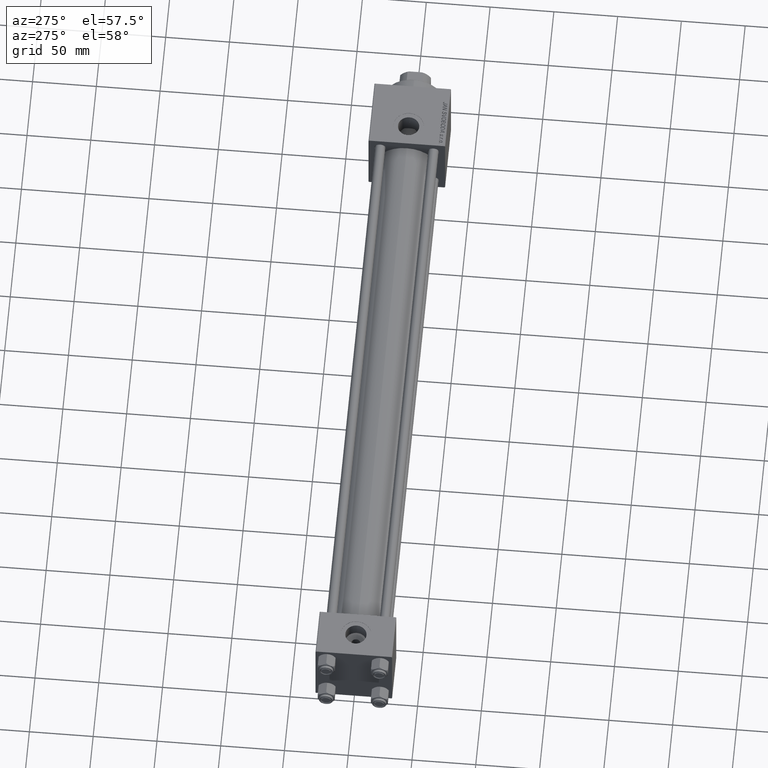
[diagram: clean part render]
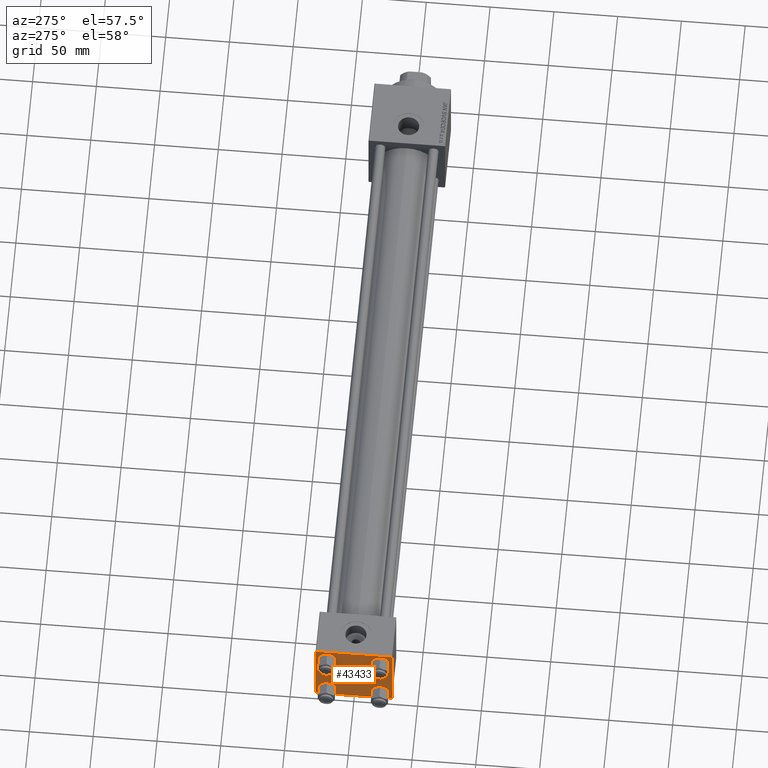
[diagram: same view with one face highlighted and labeled with its STEP entity id]
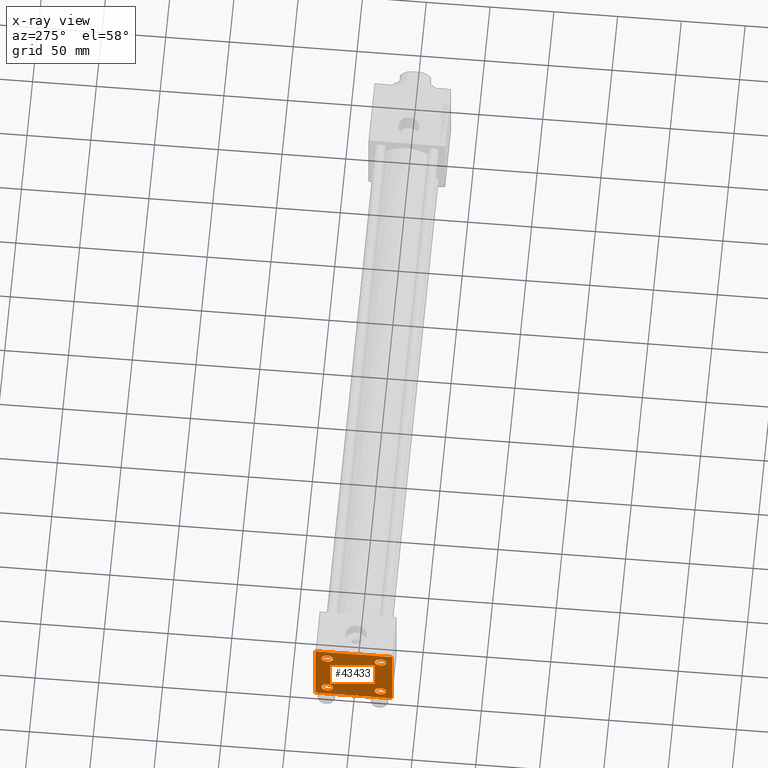
[diagram: x-ray of the same camera — body ghosted, the highlighted face saturated]
A machine part, auxiliary view. The second image highlights one B-rep face of the part: STEP entity #43433.
The next image is the same camera in x-ray: the body ghosted, the highlighted face saturated — about 0% of this face is hidden behind the body in this view.
In plain terms, the highlighted planar face has unit normal (-1, 0, 0).
Its self-contained STEP definition (entity closure, byte-faithful):
#928 = ORIENTED_EDGE ( 'NONE', *, *, #9947, .T. ) ;
#935 = VECTOR ( 'NONE', #14665, 1000.000000000000000 ) ;
#1095 = EDGE_LOOP ( 'NONE', ( #928, #43451 ) ) ;
#1309 = EDGE_CURVE ( 'NONE', #14883, #38862, #42346, .T. ) ;
#2477 = CIRCLE ( 'NONE', #11626, 4.500000000000017764 ) ;
#2730 = ORIENTED_EDGE ( 'NONE', *, *, #27385, .T. ) ;
#2939 = DIRECTION ( 'NONE',  ( 1.000000000000000000, -0.000000000000000000, 0.000000000000000000 ) ) ;
#3061 = FACE_OUTER_BOUND ( 'NONE', #20175, .T. ) ;
#3316 = FACE_BOUND ( 'NONE', #9553, .T. ) ;
#4390 = CARTESIAN_POINT ( 'NONE',  ( 0.000000000000000000, -29.50000000000000000, -30.00000000000000711 ) ) ;
#4514 = VERTEX_POINT ( 'NONE', #5230 ) ;
#5040 = DIRECTION ( 'NONE',  ( 0.000000000000000000, 0.000000000000000000, 1.000000000000000000 ) ) ;
#5230 = CARTESIAN_POINT ( 'NONE',  ( 0.000000000000000000, 20.84999999999999787, 16.34999999999998366 ) ) ;
#5675 = DIRECTION ( 'NONE',  ( 0.000000000000000000, -1.000000000000000000, -1.156482317317871725E-16 ) ) ;
#5752 = EDGE_LOOP ( 'NONE', ( #12456, #6644 ) ) ;
#5933 = LINE ( 'NONE', #41283, #40727 ) ;
#6331 = CIRCLE ( 'NONE', #22970, 4.500000000000017764 ) ;
#6529 = DIRECTION ( 'NONE',  ( 0.000000000000000000, 0.000000000000000000, 1.000000000000000000 ) ) ;
#6644 = ORIENTED_EDGE ( 'NONE', *, *, #19361, .T. ) ;
#6694 = EDGE_CURVE ( 'NONE', #49204, #27174, #9448, .T. ) ;
#6754 = CARTESIAN_POINT ( 'NONE',  ( 0.000000000000000000, 29.49999999999999289, 30.00000000000000000 ) ) ;
#6861 = ORIENTED_EDGE ( 'NONE', *, *, #14428, .T. ) ;
#7112 = VECTOR ( 'NONE', #17768, 1000.000000000000114 ) ;
#7208 = DIRECTION ( 'NONE',  ( -0.000000000000000000, 0.000000000000000000, 1.000000000000000000 ) ) ;
#7297 = CIRCLE ( 'NONE', #23077, 4.500000000000017764 ) ;
#7613 = VERTEX_POINT ( 'NONE', #27428 ) ;
#8178 = ORIENTED_EDGE ( 'NONE', *, *, #12014, .F. ) ;
#9448 = CIRCLE ( 'NONE', #36822, 4.500000000000017764 ) ;
#9553 = EDGE_LOOP ( 'NONE', ( #19967, #37689 ) ) ;
#9947 = EDGE_CURVE ( 'NONE', #17975, #26574, #21061, .T. ) ;
#10006 = EDGE_CURVE ( 'NONE', #48963, #45696, #44455, .T. ) ;
#11021 = CARTESIAN_POINT ( 'NONE',  ( 0.000000000000000000, 29.99999999999999289, 30.00000000000000000 ) ) ;
#11135 = DIRECTION ( 'NONE',  ( 0.000000000000000000, -1.000000000000000000, -1.156482317317871725E-16 ) ) ;
#11387 = FACE_BOUND ( 'NONE', #44160, .T. ) ;
#11530 = CARTESIAN_POINT ( 'NONE',  ( 0.000000000000000000, -20.84999999999999076, -20.85000000000000497 ) ) ;
#11626 = AXIS2_PLACEMENT_3D ( 'NONE', #36751, #40893, #13121 ) ;
#11755 = CARTESIAN_POINT ( 'NONE',  ( 0.000000000000000000, 20.84999999999999787, -20.85000000000000142 ) ) ;
#11906 = CARTESIAN_POINT ( 'NONE',  ( 0.000000000000000000, 29.99999999999999289, 29.50000000000000000 ) ) ;
#12014 = EDGE_CURVE ( 'NONE', #48085, #45696, #39345, .T. ) ;
#12327 = CARTESIAN_POINT ( 'NONE',  ( 0.000000000000000000, -30.00000000000000000, 29.99999999999999289 ) ) ;
#12456 = ORIENTED_EDGE ( 'NONE', *, *, #20863, .T. ) ;
#12757 = AXIS2_PLACEMENT_3D ( 'NONE', #40403, #29218, #36765 ) ;
#13084 = CARTESIAN_POINT ( 'NONE',  ( 0.000000000000000000, -20.84999999999999076, 25.35000000000002274 ) ) ;
#13121 = DIRECTION ( 'NONE',  ( 0.000000000000000000, 0.000000000000000000, 1.000000000000000000 ) ) ;
#13137 = ORIENTED_EDGE ( 'NONE', *, *, #40366, .T. ) ;
#13875 = LINE ( 'NONE', #26065, #7112 ) ;
#14428 = EDGE_CURVE ( 'NONE', #48085, #32219, #13875, .T. ) ;
#14665 = DIRECTION ( 'NONE',  ( 0.000000000000000000, 0.000000000000000000, -1.000000000000000000 ) ) ;
#14883 = VERTEX_POINT ( 'NONE', #6754 ) ;
#15139 = DIRECTION ( 'NONE',  ( 0.000000000000000000, 0.000000000000000000, 1.000000000000000000 ) ) ;
#15329 = DIRECTION ( 'NONE',  ( 1.000000000000000000, -0.000000000000000000, 0.000000000000000000 ) ) ;
#15344 = CARTESIAN_POINT ( 'NONE',  ( 0.000000000000000000, 20.84999999999999787, 20.85000000000000142 ) ) ;
#16278 = CARTESIAN_POINT ( 'NONE',  ( 0.000000000000000000, -20.84999999999999076, -16.34999999999998721 ) ) ;
#16418 = EDGE_CURVE ( 'NONE', #4514, #24599, #6331, .T. ) ;
#17768 = DIRECTION ( 'NONE',  ( -0.000000000000000000, 0.7071067811865474617, 0.7071067811865474617 ) ) ;
#17975 = VERTEX_POINT ( 'NONE', #13084 ) ;
#18180 = CARTESIAN_POINT ( 'NONE',  ( 0.000000000000000000, 29.99999999999999289, 30.00000000000000000 ) ) ;
#18929 = DIRECTION ( 'NONE',  ( -1.000000000000000000, 0.000000000000000000, -0.000000000000000000 ) ) ;
#19181 = FACE_BOUND ( 'NONE', #5752, .T. ) ;
#19361 = EDGE_CURVE ( 'NONE', #7613, #24325, #7297, .T. ) ;
#19695 = PLANE ( 'NONE',  #22624 ) ;
#19967 = ORIENTED_EDGE ( 'NONE', *, *, #6694, .T. ) ;
#20175 = EDGE_LOOP ( 'NONE', ( #13137, #29128, #43497, #21222, #8178, #6861, #45839, #43095 ) ) ;
#20863 = EDGE_CURVE ( 'NONE', #24325, #7613, #26113, .T. ) ;
#21061 = CIRCLE ( 'NONE', #12757, 4.500000000000017764 ) ;
#21138 = AXIS2_PLACEMENT_3D ( 'NONE', #48947, #24805, #5040 ) ;
#21222 = ORIENTED_EDGE ( 'NONE', *, *, #10006, .T. ) ;
#22624 = AXIS2_PLACEMENT_3D ( 'NONE', #43564, #18929, #7208 ) ;
#22654 = DIRECTION ( 'NONE',  ( 1.000000000000000000, -0.000000000000000000, 0.000000000000000000 ) ) ;
#22970 = AXIS2_PLACEMENT_3D ( 'NONE', #46789, #22654, #6529 ) ;
#23077 = AXIS2_PLACEMENT_3D ( 'NONE', #11530, #2939, #48028 ) ;
#24262 = DIRECTION ( 'NONE',  ( 0.000000000000000000, 0.000000000000000000, -1.000000000000000000 ) ) ;
#24325 = VERTEX_POINT ( 'NONE', #16278 ) ;
#24599 = VERTEX_POINT ( 'NONE', #43225 ) ;
#24805 = DIRECTION ( 'NONE',  ( 1.000000000000000000, -0.000000000000000000, 0.000000000000000000 ) ) ;
#25497 = CARTESIAN_POINT ( 'NONE',  ( 0.000000000000000000, -29.75000000000001066, -29.75000000000001066 ) ) ;
#26038 = VECTOR ( 'NONE', #49382, 1000.000000000000114 ) ;
#26065 = CARTESIAN_POINT ( 'NONE',  ( -0.000000000000000000, -29.74999999999999645, 29.74999999999999645 ) ) ;
#26093 = LINE ( 'NONE', #11021, #935 ) ;
#26113 = CIRCLE ( 'NONE', #21138, 4.500000000000017764 ) ;
#26574 = VERTEX_POINT ( 'NONE', #33401 ) ;
#27174 = VERTEX_POINT ( 'NONE', #34740 ) ;
#27385 = EDGE_CURVE ( 'NONE', #24599, #4514, #50396, .T. ) ;
#27428 = CARTESIAN_POINT ( 'NONE',  ( 0.000000000000000000, -20.84999999999999076, -25.35000000000002274 ) ) ;
#27930 = VERTEX_POINT ( 'NONE', #48145 ) ;
#29128 = ORIENTED_EDGE ( 'NONE', *, *, #43803, .T. ) ;
#29218 = DIRECTION ( 'NONE',  ( 1.000000000000000000, -0.000000000000000000, 0.000000000000000000 ) ) ;
#29409 = EDGE_CURVE ( 'NONE', #14883, #32219, #45682, .T. ) ;
#29828 = VERTEX_POINT ( 'NONE', #46407 ) ;
#32219 = VERTEX_POINT ( 'NONE', #47634 ) ;
#32512 = AXIS2_PLACEMENT_3D ( 'NONE', #11755, #46810, #15139 ) ;
#33401 = CARTESIAN_POINT ( 'NONE',  ( 0.000000000000000000, -20.84999999999999076, 16.34999999999998721 ) ) ;
#33601 = VECTOR ( 'NONE', #24262, 1000.000000000000000 ) ;
#33673 = EDGE_CURVE ( 'NONE', #26574, #17975, #2477, .T. ) ;
#33882 = DIRECTION ( 'NONE',  ( -0.000000000000000000, -0.7071067811865574537, -0.7071067811865376918 ) ) ;
#34565 = CARTESIAN_POINT ( 'NONE',  ( 0.000000000000000000, 29.74999999999999645, 29.74999999999999645 ) ) ;
#34740 = CARTESIAN_POINT ( 'NONE',  ( 0.000000000000000000, 20.84999999999999787, -25.35000000000001918 ) ) ;
#35338 = DIRECTION ( 'NONE',  ( 0.000000000000000000, 0.7071067811865474617, -0.7071067811865474617 ) ) ;
#36751 = CARTESIAN_POINT ( 'NONE',  ( 0.000000000000000000, -20.84999999999999076, 20.85000000000000497 ) ) ;
#36765 = DIRECTION ( 'NONE',  ( 0.000000000000000000, 0.000000000000000000, 1.000000000000000000 ) ) ;
#36822 = AXIS2_PLACEMENT_3D ( 'NONE', #47001, #15329, #42084 ) ;
#37453 = VECTOR ( 'NONE', #35338, 1000.000000000000114 ) ;
#37689 = ORIENTED_EDGE ( 'NONE', *, *, #41901, .T. ) ;
#37940 = AXIS2_PLACEMENT_3D ( 'NONE', #15344, #38963, #39478 ) ;
#38306 = ORIENTED_EDGE ( 'NONE', *, *, #16418, .T. ) ;
#38862 = VERTEX_POINT ( 'NONE', #11906 ) ;
#38963 = DIRECTION ( 'NONE',  ( 1.000000000000000000, -0.000000000000000000, 0.000000000000000000 ) ) ;
#39178 = CARTESIAN_POINT ( 'NONE',  ( 0.000000000000000000, 20.84999999999999787, -16.34999999999998366 ) ) ;
#39345 = LINE ( 'NONE', #12327, #33601 ) ;
#39478 = DIRECTION ( 'NONE',  ( 0.000000000000000000, 0.000000000000000000, 1.000000000000000000 ) ) ;
#39813 = EDGE_CURVE ( 'NONE', #29828, #48963, #5933, .T. ) ;
#40366 = EDGE_CURVE ( 'NONE', #38862, #27930, #26093, .T. ) ;
#40403 = CARTESIAN_POINT ( 'NONE',  ( 0.000000000000000000, -20.84999999999999076, 20.85000000000000497 ) ) ;
#40727 = VECTOR ( 'NONE', #5675, 1000.000000000000000 ) ;
#40893 = DIRECTION ( 'NONE',  ( 1.000000000000000000, -0.000000000000000000, 0.000000000000000000 ) ) ;
#41283 = CARTESIAN_POINT ( 'NONE',  ( 0.000000000000000000, 29.99999999999999289, -30.00000000000000000 ) ) ;
#41901 = EDGE_CURVE ( 'NONE', #27174, #49204, #42447, .T. ) ;
#42084 = DIRECTION ( 'NONE',  ( 0.000000000000000000, 0.000000000000000000, 1.000000000000000000 ) ) ;
#42346 = LINE ( 'NONE', #34565, #37453 ) ;
#42447 = CIRCLE ( 'NONE', #32512, 4.500000000000017764 ) ;
#43095 = ORIENTED_EDGE ( 'NONE', *, *, #1309, .T. ) ;
#43225 = CARTESIAN_POINT ( 'NONE',  ( 0.000000000000000000, 20.84999999999999787, 25.35000000000001918 ) ) ;
#43314 = FACE_BOUND ( 'NONE', #1095, .T. ) ;
#43433 = ADVANCED_FACE ( 'NONE', ( #43314, #19181, #3316, #11387, #3061 ), #19695, .T. ) ;
#43451 = ORIENTED_EDGE ( 'NONE', *, *, #33673, .T. ) ;
#43497 = ORIENTED_EDGE ( 'NONE', *, *, #39813, .T. ) ;
#43564 = CARTESIAN_POINT ( 'NONE',  ( 0.000000000000000000, 0.000000000000000000, 0.000000000000000000 ) ) ;
#43803 = EDGE_CURVE ( 'NONE', #27930, #29828, #49451, .T. ) ;
#43823 = VECTOR ( 'NONE', #11135, 1000.000000000000000 ) ;
#44160 = EDGE_LOOP ( 'NONE', ( #2730, #38306 ) ) ;
#44455 = LINE ( 'NONE', #25497, #26038 ) ;
#44986 = VECTOR ( 'NONE', #33882, 999.9999999999998863 ) ;
#45476 = CARTESIAN_POINT ( 'NONE',  ( 0.000000000000000000, -30.00000000000000000, 29.49999999999999289 ) ) ;
#45557 = CARTESIAN_POINT ( 'NONE',  ( 0.000000000000000000, 29.74999999999957723, -29.75000000000040501 ) ) ;
#45682 = LINE ( 'NONE', #18180, #43823 ) ;
#45696 = VERTEX_POINT ( 'NONE', #45954 ) ;
#45839 = ORIENTED_EDGE ( 'NONE', *, *, #29409, .F. ) ;
#45954 = CARTESIAN_POINT ( 'NONE',  ( 0.000000000000000000, -30.00000000000000000, -29.50000000000001776 ) ) ;
#46407 = CARTESIAN_POINT ( 'NONE',  ( 0.000000000000000000, 29.49999999999997868, -30.00000000000000000 ) ) ;
#46789 = CARTESIAN_POINT ( 'NONE',  ( 0.000000000000000000, 20.84999999999999787, 20.85000000000000142 ) ) ;
#46810 = DIRECTION ( 'NONE',  ( 1.000000000000000000, -0.000000000000000000, 0.000000000000000000 ) ) ;
#47001 = CARTESIAN_POINT ( 'NONE',  ( 0.000000000000000000, 20.84999999999999787, -20.85000000000000142 ) ) ;
#47634 = CARTESIAN_POINT ( 'NONE',  ( 0.000000000000000000, -29.49999999999998579, 29.99999999999999289 ) ) ;
#48028 = DIRECTION ( 'NONE',  ( 0.000000000000000000, 0.000000000000000000, 1.000000000000000000 ) ) ;
#48085 = VERTEX_POINT ( 'NONE', #45476 ) ;
#48145 = CARTESIAN_POINT ( 'NONE',  ( 0.000000000000000000, 29.99999999999999289, -29.50000000000000000 ) ) ;
#48947 = CARTESIAN_POINT ( 'NONE',  ( 0.000000000000000000, -20.84999999999999076, -20.85000000000000497 ) ) ;
#48963 = VERTEX_POINT ( 'NONE', #4390 ) ;
#49204 = VERTEX_POINT ( 'NONE', #39178 ) ;
#49382 = DIRECTION ( 'NONE',  ( 0.000000000000000000, -0.7071067811865474617, 0.7071067811865474617 ) ) ;
#49451 = LINE ( 'NONE', #45557, #44986 ) ;
#50396 = CIRCLE ( 'NONE', #37940, 4.500000000000017764 ) ;